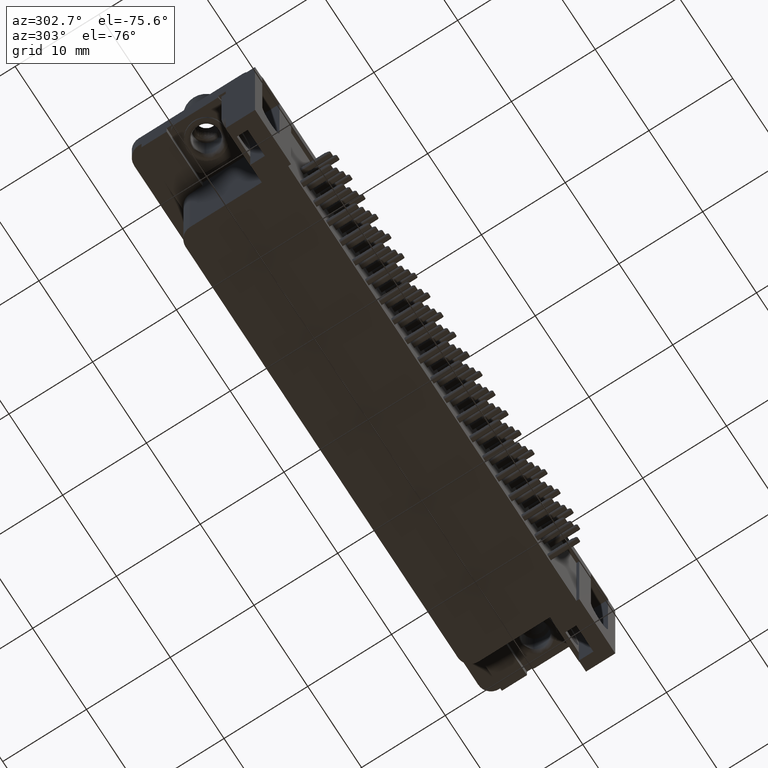
[diagram: clean part render]
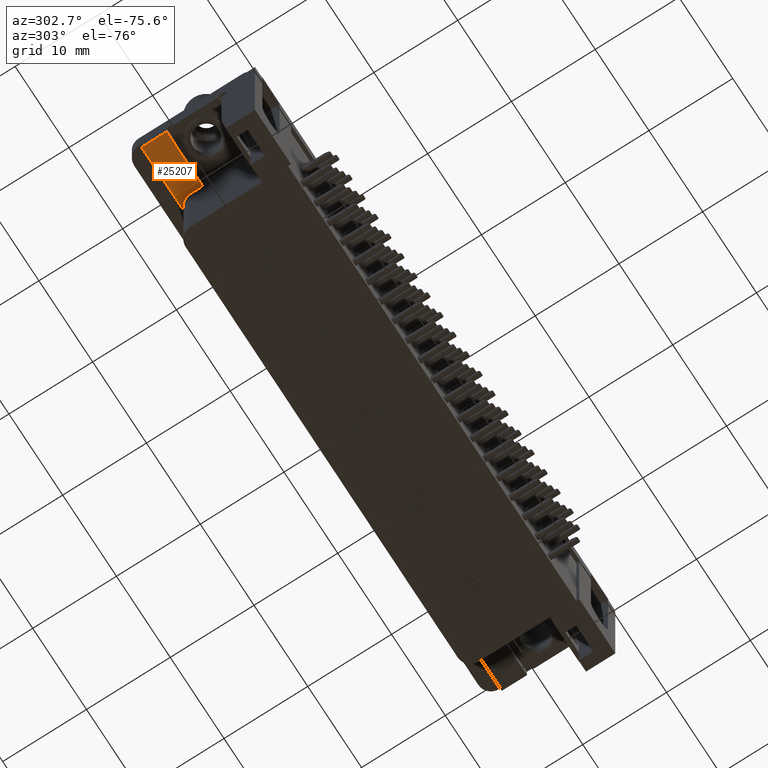
[diagram: same view with one face highlighted and labeled with its STEP entity id]
A machine part, auxiliary view. The second image highlights one B-rep face of the part: STEP entity #25207.
In plain terms, the highlighted planar face has unit normal (0, 0, 1).
Its self-contained STEP definition (entity closure, byte-faithful):
#765 = ORIENTED_EDGE ( 'NONE', *, *, #11956, .T. ) ;
#2358 = CARTESIAN_POINT ( 'NONE',  ( 0.0000000000000000000, 0.0000000000000000000, -3.899999999999999900 ) ) ;
#5644 = LINE ( 'NONE', #9006, #38668 ) ;
#8975 = EDGE_CURVE ( 'NONE', #37688, #25882, #19898, .T. ) ;
#9006 = CARTESIAN_POINT ( 'NONE',  ( 3.750000000000007500, 1.902109074535978400E-016, -3.899999999999999900 ) ) ;
#9081 = AXIS2_PLACEMENT_3D ( 'NONE', #2358, #31105, #11941 ) ;
#9176 = ORIENTED_EDGE ( 'NONE', *, *, #9789, .T. ) ;
#9203 = CARTESIAN_POINT ( 'NONE',  ( -2.949999999999992200, 2.849999999999993400, -3.899999999999999900 ) ) ;
#9789 = EDGE_CURVE ( 'NONE', #18572, #38839, #22848, .T. ) ;
#11127 = VECTOR ( 'NONE', #12724, 1000.000000000000000 ) ;
#11941 = DIRECTION ( 'NONE',  ( 1.000000000000000000, 0.0000000000000000000, 0.0000000000000000000 ) ) ;
#11956 = EDGE_CURVE ( 'NONE', #25882, #18572, #35653, .T. ) ;
#12724 = DIRECTION ( 'NONE',  ( -0.0000000000000000000, 1.000000000000000000, -0.0000000000000000000 ) ) ;
#14763 = DIRECTION ( 'NONE',  ( -1.000000000000000000, -0.0000000000000000000, -0.0000000000000000000 ) ) ;
#14963 = CIRCLE ( 'NONE', #19183, 1.500000000000000400 ) ;
#15582 = DIRECTION ( 'NONE',  ( 0.0000000000000000000, -0.0000000000000000000, -1.000000000000000000 ) ) ;
#16827 = ORIENTED_EDGE ( 'NONE', *, *, #20562, .F. ) ;
#18379 = EDGE_CURVE ( 'NONE', #37688, #37453, #5644, .T. ) ;
#18572 = VERTEX_POINT ( 'NONE', #38822 ) ;
#19183 = AXIS2_PLACEMENT_3D ( 'NONE', #34746, #15582, #37960 ) ;
#19898 = LINE ( 'NONE', #30736, #35885 ) ;
#20562 = EDGE_CURVE ( 'NONE', #37453, #38839, #14963, .T. ) ;
#21139 = EDGE_LOOP ( 'NONE', ( #16827, #26015, #28600, #765, #9176 ) ) ;
#21788 = DIRECTION ( 'NONE',  ( -5.072290865429265400E-017, 1.000000000000000000, -0.0000000000000000000 ) ) ;
#21818 = VECTOR ( 'NONE', #32599, 1000.000000000000000 ) ;
#22848 = LINE ( 'NONE', #29278, #21818 ) ;
#24302 = CARTESIAN_POINT ( 'NONE',  ( 5.250000000000008000, 5.849999999999994300, -3.899999999999999900 ) ) ;
#25207 = ADVANCED_FACE ( 'NONE', ( #26608 ), #27907, .F. ) ;
#25882 = VERTEX_POINT ( 'NONE', #9203 ) ;
#26015 = ORIENTED_EDGE ( 'NONE', *, *, #18379, .F. ) ;
#26608 = FACE_OUTER_BOUND ( 'NONE', #21139, .T. ) ;
#27907 = PLANE ( 'NONE',  #9081 ) ;
#28600 = ORIENTED_EDGE ( 'NONE', *, *, #8975, .T. ) ;
#29278 = CARTESIAN_POINT ( 'NONE',  ( -2.949999999999992200, 5.849999999999994300, -3.899999999999999900 ) ) ;
#30736 = CARTESIAN_POINT ( 'NONE',  ( -2.949999999999992200, 2.849999999999993400, -3.899999999999999900 ) ) ;
#31105 = DIRECTION ( 'NONE',  ( -0.0000000000000000000, 0.0000000000000000000, 1.000000000000000000 ) ) ;
#32599 = DIRECTION ( 'NONE',  ( 1.000000000000000000, 0.0000000000000000000, 0.0000000000000000000 ) ) ;
#34746 = CARTESIAN_POINT ( 'NONE',  ( 5.250000000000008000, 4.349999999999992500, -3.900000000000000800 ) ) ;
#34755 = CARTESIAN_POINT ( 'NONE',  ( 3.750000000000007100, 2.849999999999993400, -3.899999999999999900 ) ) ;
#35653 = LINE ( 'NONE', #41319, #11127 ) ;
#35885 = VECTOR ( 'NONE', #14763, 1000.000000000000000 ) ;
#36611 = CARTESIAN_POINT ( 'NONE',  ( 3.750000000000007100, 4.349999999999992500, -3.900000000000000800 ) ) ;
#37453 = VERTEX_POINT ( 'NONE', #36611 ) ;
#37688 = VERTEX_POINT ( 'NONE', #34755 ) ;
#37960 = DIRECTION ( 'NONE',  ( 1.000000000000000000, 0.0000000000000000000, 0.0000000000000000000 ) ) ;
#38668 = VECTOR ( 'NONE', #21788, 1000.000000000000000 ) ;
#38822 = CARTESIAN_POINT ( 'NONE',  ( -2.949999999999992200, 5.849999999999994300, -3.899999999999999900 ) ) ;
#38839 = VERTEX_POINT ( 'NONE', #24302 ) ;
#41319 = CARTESIAN_POINT ( 'NONE',  ( -2.949999999999992200, 5.849999999999994300, -3.899999999999999900 ) ) ;